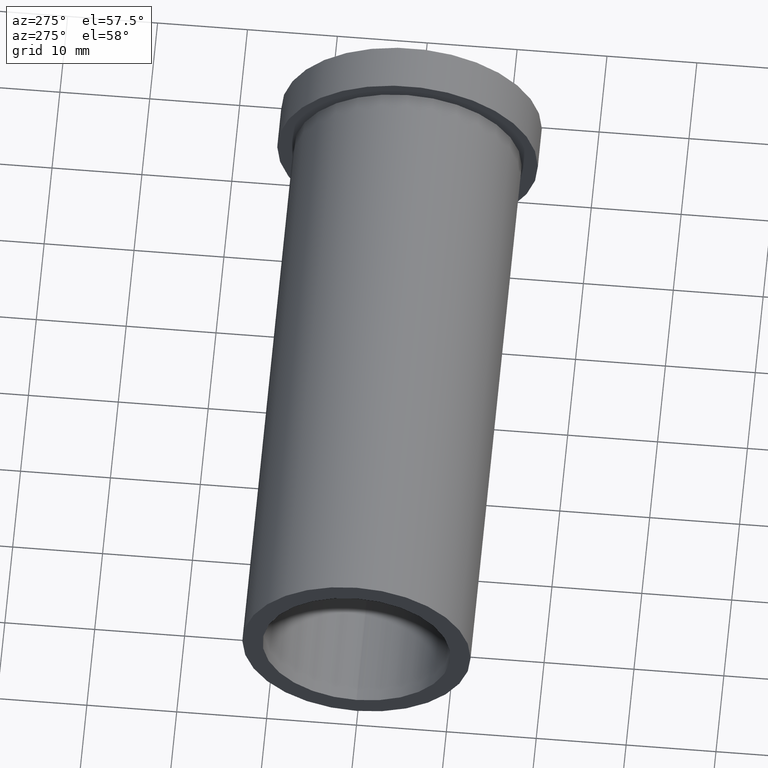
[diagram: clean part render]
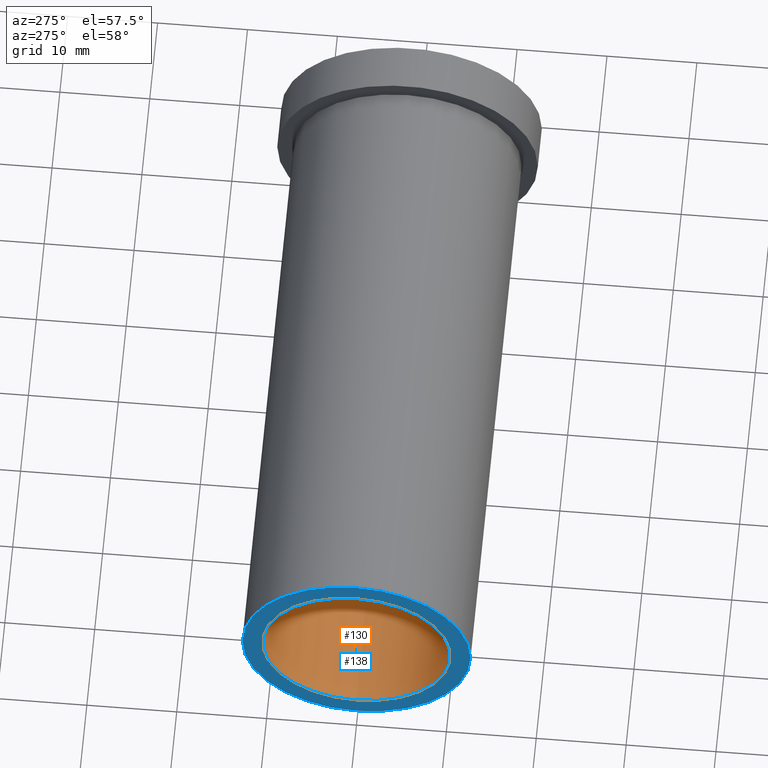
[diagram: same view with the hole feature highlighted: cylindrical wall and planar end face, labeled with their STEP entity ids]
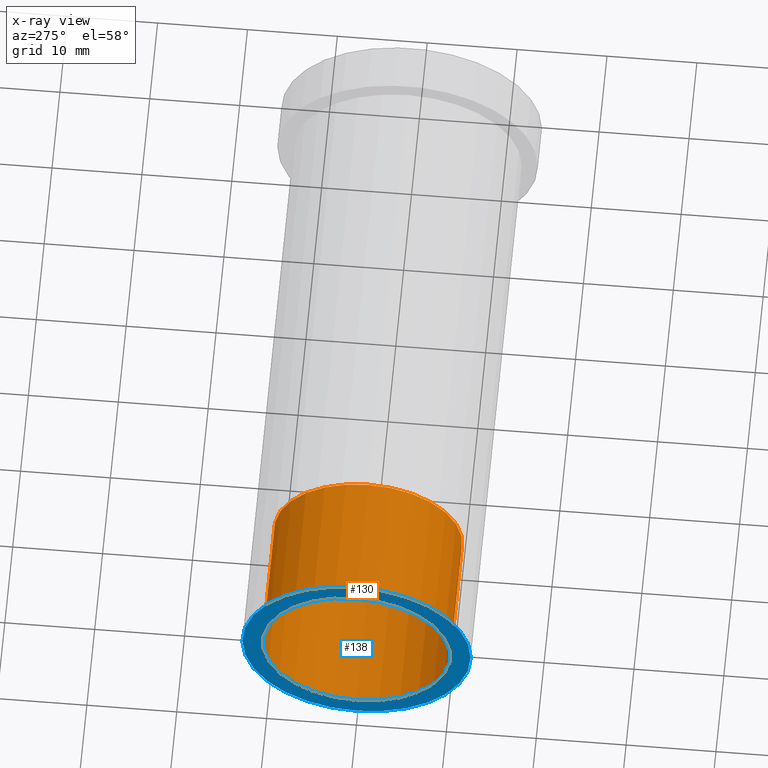
[diagram: x-ray of the same camera — body ghosted, the hole faces saturated]
A machine part, auxiliary view. The highlighted faces form one hole feature of diameter 20.9174 mm: the cylindrical wall (entity #130, orange) and its adjacent planar end face (entity #138, blue) — they share a circular edge in the B-rep.
The next image is the same camera in x-ray (body ghosted, the hole faces saturated) — the bore reads through the body.
Wall:
#25=FACE_OUTER_BOUND('',#35,.T.);
#35=EDGE_LOOP('',(#95,#96,#97,#98));
#50=LINE('',#235,#55);
#55=VECTOR('',#189,10.458734);
#60=CIRCLE('',#164,10.458734);
#61=CIRCLE('',#165,10.458734);
#70=VERTEX_POINT('',#232);
#71=VERTEX_POINT('',#234);
#80=EDGE_CURVE('',#70,#70,#60,.T.);
#81=EDGE_CURVE('',#70,#71,#50,.T.);
#82=EDGE_CURVE('',#71,#71,#61,.T.);
#95=ORIENTED_EDGE('',*,*,#80,.F.);
#96=ORIENTED_EDGE('',*,*,#81,.T.);
#97=ORIENTED_EDGE('',*,*,#82,.F.);
#98=ORIENTED_EDGE('',*,*,#81,.F.);
#125=CYLINDRICAL_SURFACE('',#163,10.458734);
#130=ADVANCED_FACE('',(#25),#125,.F.);
#163=AXIS2_PLACEMENT_3D('',#231,#185,#186);
#164=AXIS2_PLACEMENT_3D('',#233,#187,#188);
#165=AXIS2_PLACEMENT_3D('',#236,#190,#191);
#185=DIRECTION('center_axis',(-1.,0.,0.));
#186=DIRECTION('ref_axis',(0.,0.,1.));
#187=DIRECTION('center_axis',(1.,0.,0.));
#188=DIRECTION('ref_axis',(0.,0.,1.));
#189=DIRECTION('',(1.,0.,0.));
#190=DIRECTION('center_axis',(-1.,0.,0.));
#191=DIRECTION('ref_axis',(0.,0.,1.));
#231=CARTESIAN_POINT('Origin',(-61.,0.,0.));
#232=CARTESIAN_POINT('',(-70.,-1.28082551162336E-15,-10.458734));
#233=CARTESIAN_POINT('Origin',(-70.,0.,0.));
#234=CARTESIAN_POINT('',(-55.,-1.28082551162336E-15,-10.458734));
#235=CARTESIAN_POINT('',(-61.,-1.28082551162336E-15,-10.458734));
#236=CARTESIAN_POINT('Origin',(-55.,0.,0.));
End face:
#19=FACE_BOUND('',#48,.T.);
#24=PLANE('',#180);
#33=FACE_OUTER_BOUND('',#47,.T.);
#47=EDGE_LOOP('',(#119));
#48=EDGE_LOOP('',(#120));
#60=CIRCLE('',#164,10.458734);
#69=CIRCLE('',#181,12.7);
#70=VERTEX_POINT('',#232);
#79=VERTEX_POINT('',#262);
#80=EDGE_CURVE('',#70,#70,#60,.T.);
#93=EDGE_CURVE('',#79,#79,#69,.T.);
#119=ORIENTED_EDGE('',*,*,#93,.F.);
#120=ORIENTED_EDGE('',*,*,#80,.T.);
#138=ADVANCED_FACE('',(#33,#19),#24,.T.);
#164=AXIS2_PLACEMENT_3D('',#233,#187,#188);
#180=AXIS2_PLACEMENT_3D('',#261,#223,#224);
#181=AXIS2_PLACEMENT_3D('',#263,#225,#226);
#187=DIRECTION('center_axis',(1.,0.,0.));
#188=DIRECTION('ref_axis',(0.,0.,1.));
#223=DIRECTION('center_axis',(-1.,0.,0.));
#224=DIRECTION('ref_axis',(0.,0.,1.));
#225=DIRECTION('center_axis',(1.,0.,0.));
#226=DIRECTION('ref_axis',(0.,0.,-1.));
#232=CARTESIAN_POINT('',(-70.,-1.28082551162336E-15,-10.458734));
#233=CARTESIAN_POINT('Origin',(-70.,0.,0.));
#261=CARTESIAN_POINT('Origin',(-70.,12.7,0.));
#262=CARTESIAN_POINT('',(-70.,-12.7,-1.55530143491714E-15));
#263=CARTESIAN_POINT('Origin',(-70.,0.,0.));